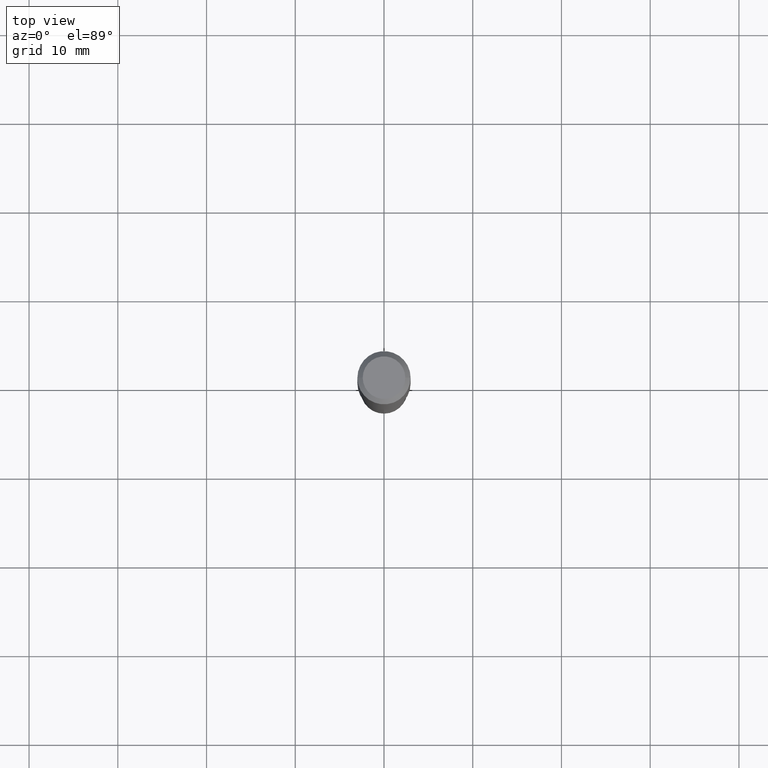
[diagram: clean part render]
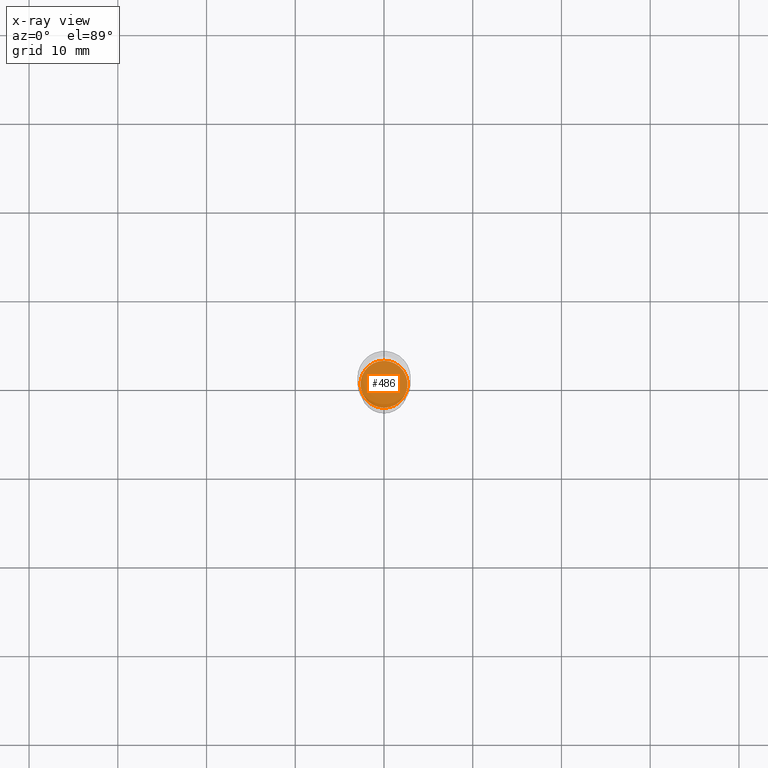
[diagram: x-ray — body ghosted, one internal face saturated and labeled with its STEP entity id]
A machine part, top view, then the same camera in x-ray: the body is ghosted and one INTERNAL B-rep face — a face not visible from any outside direction — is saturated and labeled: STEP entity #486.
In plain terms, the highlighted planar face has unit normal (0, -0, -1).
Its self-contained STEP definition (entity closure, byte-faithful):
#32 = EDGE_CURVE ( 'NONE', #397, #233, #83, .T. ) ;
#80 = CARTESIAN_POINT ( 'NONE',  ( 4.168790673903801858E-29, -5.951928238325910137E-15, -1.704699999999999882 ) ) ;
#83 = CIRCLE ( 'NONE', #212, 0.1043499999999999844 ) ;
#86 = CARTESIAN_POINT ( 'NONE',  ( 4.168790673903801858E-29, -5.951928238325910137E-15, -1.704699999999999882 ) ) ;
#91 = DIRECTION ( 'NONE',  ( -2.445509400597785570E-29, 3.491423205333741467E-15, 1.000000000000000000 ) ) ;
#92 = AXIS2_PLACEMENT_3D ( 'NONE', #86, #272, #236 ) ;
#173 = DIRECTION ( 'NONE',  ( -6.982962677686265922E-15, -1.000000000000000000, 2.617966452960482631E-15 ) ) ;
#209 = ORIENTED_EDGE ( 'NONE', *, *, #432, .T. ) ;
#212 = AXIS2_PLACEMENT_3D ( 'NONE', #425, #91, #173 ) ;
#231 = DIRECTION ( 'NONE',  ( -6.982962677686265922E-15, -1.000000000000000000, 2.617966452960482631E-15 ) ) ;
#233 = VERTEX_POINT ( 'NONE', #401 ) ;
#236 = DIRECTION ( 'NONE',  ( 6.982962677686265922E-15, 1.000000000000000000, -3.491423205333741862E-15 ) ) ;
#244 = AXIS2_PLACEMENT_3D ( 'NONE', #80, #346, #231 ) ;
#272 = DIRECTION ( 'NONE',  ( 2.445509400597785289E-29, -3.491423205333741862E-15, -1.000000000000000000 ) ) ;
#273 = EDGE_LOOP ( 'NONE', ( #209, #455 ) ) ;
#278 = PLANE ( 'NONE',  #92 ) ;
#324 = CIRCLE ( 'NONE', #244, 0.1043499999999999844 ) ;
#346 = DIRECTION ( 'NONE',  ( -2.445509400597785570E-29, 3.491423205333741467E-15, 1.000000000000000000 ) ) ;
#386 = FACE_OUTER_BOUND ( 'NONE', #273, .T. ) ;
#397 = VERTEX_POINT ( 'NONE', #484 ) ;
#401 = CARTESIAN_POINT ( 'NONE',  ( -7.286721554165200096E-16, -0.1043500000000059519, -1.704699999999999660 ) ) ;
#425 = CARTESIAN_POINT ( 'NONE',  ( 4.168790673903801858E-29, -5.951928238325910137E-15, -1.704699999999999882 ) ) ;
#432 = EDGE_CURVE ( 'NONE', #233, #397, #324, .T. ) ;
#455 = ORIENTED_EDGE ( 'NONE', *, *, #32, .T. ) ;
#484 = CARTESIAN_POINT ( 'NONE',  ( 7.414513447657423334E-16, 0.1043499999999940447, -1.704700000000000326 ) ) ;
#486 = ADVANCED_FACE ( 'NONE', ( #386 ), #278, .F. ) ;